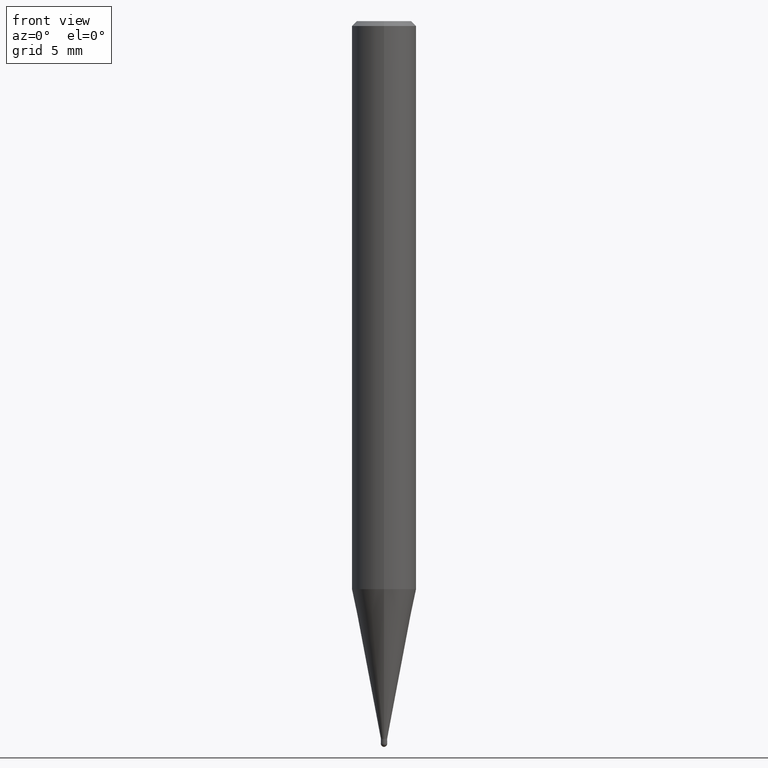
[diagram: clean part render]
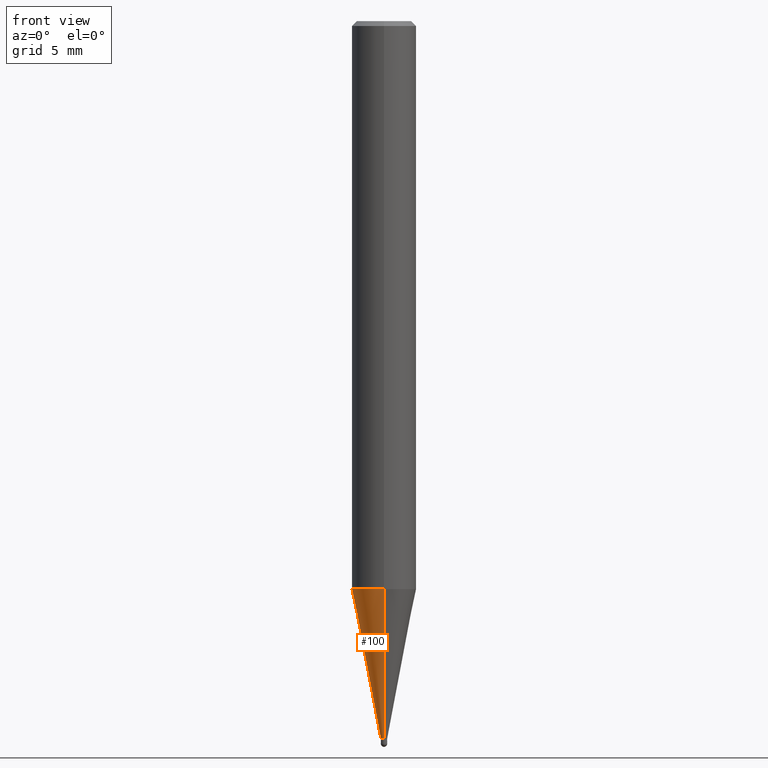
[diagram: same view with one face highlighted and labeled with its STEP entity id]
A machine part, front view. The second image highlights one B-rep face of the part: STEP entity #100.
In plain terms, the highlighted conical surface has half-angle 11 deg.
Its self-contained STEP definition (entity closure, byte-faithful):
#100=ADVANCED_FACE('',(#241),#242,.T.);
#120=VERTEX_POINT('',#267);
#128=EDGE_CURVE('',#120,#148,#276,.T.);
#148=VERTEX_POINT('',#298);
#174=EDGE_CURVE('',#186,#208,#328,.T.);
#180=EDGE_CURVE('',#148,#208,#334,.T.);
#186=VERTEX_POINT('',#340);
#198=EDGE_CURVE('',#186,#120,#352,.T.);
#208=VERTEX_POINT('',#364);
#241=FACE_OUTER_BOUND('',#396,.T.);
#242=CONICAL_SURFACE('',#397,1.09745,0.191984604054908);
#267=CARTESIAN_POINT('',(2.44915147732706E-016,-1.99995,-35.214));
#276=CIRCLE('',#437,1.99995);
#298=CARTESIAN_POINT('',(0.0,1.99995,-35.214));
#328=CIRCLE('',#498,0.19495);
#334=LINE('',#507,#508);
#340=CARTESIAN_POINT('',(2.38737008677672E-017,-0.19495,-44.5));
#352=LINE('',#533,#534);
#364=CARTESIAN_POINT('',(0.0,0.19495,-44.5));
#396=EDGE_LOOP('',(#565,#566,#567,#568));
#397=AXIS2_PLACEMENT_3D('',#569,#570,#571);
#437=AXIS2_PLACEMENT_3D('',#623,#624,#625);
#498=AXIS2_PLACEMENT_3D('',#686,#687,#688);
#507=CARTESIAN_POINT('',(-1.34394424300237E-016,1.09745,-39.857));
#508=VECTOR('',#695,1.0);
#533=CARTESIAN_POINT('',(1.34394424300237E-016,-1.09745,-39.857));
#534=VECTOR('',#709,1.0);
#565=ORIENTED_EDGE('',*,*,#180,.T.);
#566=ORIENTED_EDGE('',*,*,#174,.F.);
#567=ORIENTED_EDGE('',*,*,#198,.T.);
#568=ORIENTED_EDGE('',*,*,#128,.T.);
#569=CARTESIAN_POINT('',(0.0,0.0,-39.857));
#570=DIRECTION('',(-0.0,-0.0,1.0));
#571=DIRECTION('',(0.0,1.0,0.0));
#623=CARTESIAN_POINT('',(0.0,0.0,-35.214));
#624=DIRECTION('',(0.0,0.0,-1.0));
#625=DIRECTION('',(0.0,1.0,0.0));
#686=CARTESIAN_POINT('',(0.0,0.0,-44.5));
#687=DIRECTION('',(0.0,0.0,-1.0));
#688=DIRECTION('',(0.0,1.0,0.0));
#695=DIRECTION('',(2.33663968307108E-017,-0.190807411359389,-0.981627491348082));
#709=DIRECTION('',(2.33663968307108E-017,-0.190807411359389,0.981627491348082));